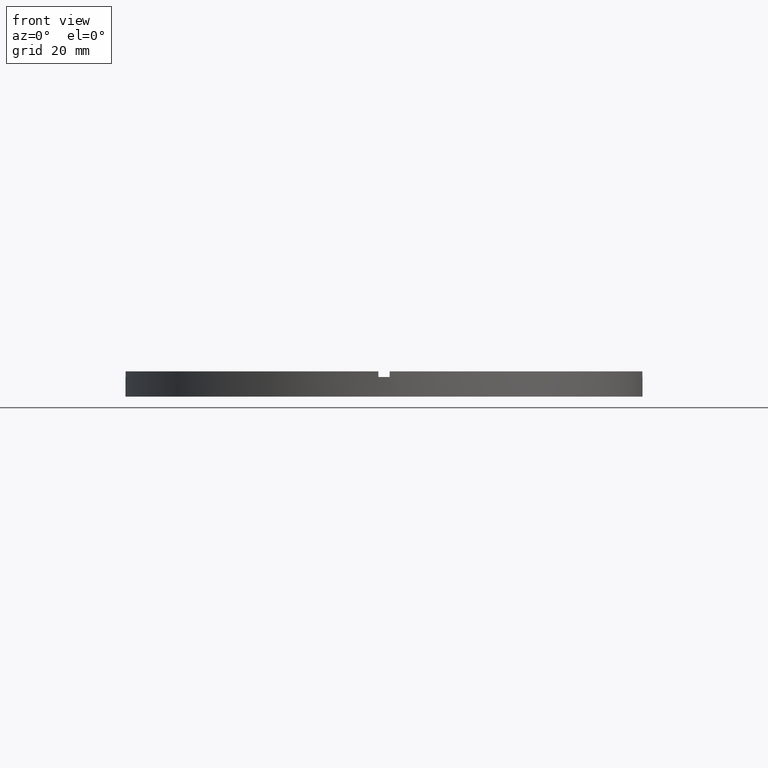
[diagram: clean part render]
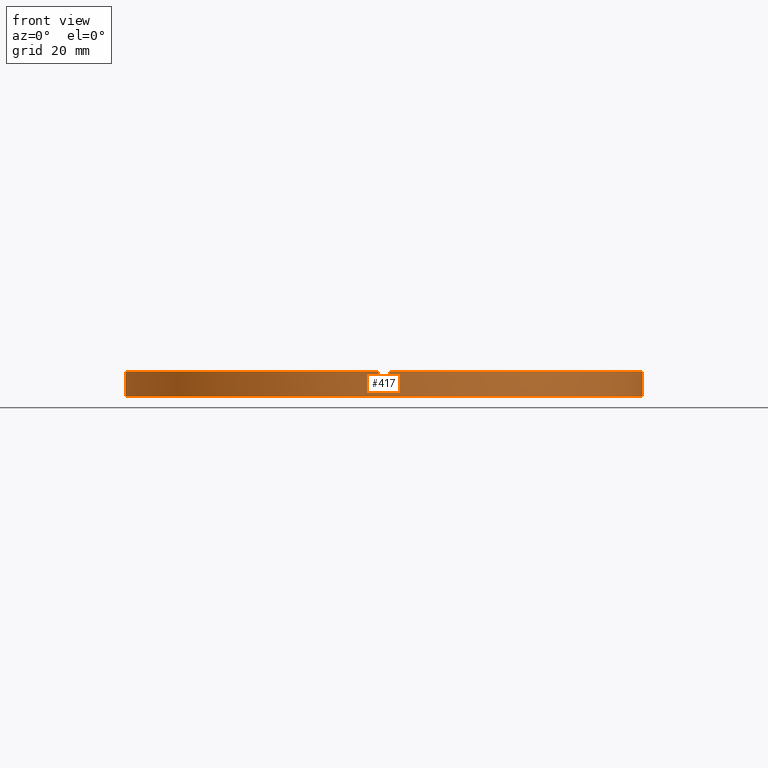
[diagram: same view with one face highlighted and labeled with its STEP entity id]
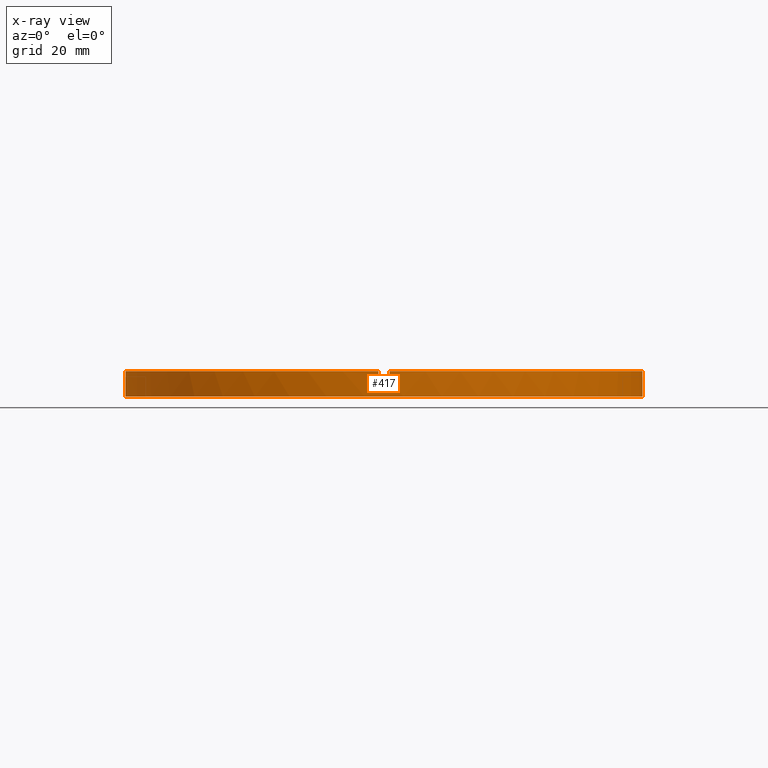
[diagram: x-ray of the same camera — body ghosted, the highlighted face saturated]
A machine part, front view. The second image highlights one B-rep face of the part: STEP entity #417.
The next image is the same camera in x-ray: the body ghosted, the highlighted face saturated — about 0% of this face is hidden behind the body in this view.
In plain terms, the highlighted cylindrical surface (partial cylindrical patch) has radius 46 mm, axis along (-0, -0, -1).
Its self-contained STEP definition (entity closure, byte-faithful):
#1 = CIRCLE ( 'NONE', #166, 46.00000000000000000 ) ;
#3 = LINE ( 'NONE', #771, #769 ) ;
#23 = VERTEX_POINT ( 'NONE', #419 ) ;
#26 = VERTEX_POINT ( 'NONE', #512 ) ;
#58 = DIRECTION ( 'NONE',  ( 1.000000000000000000, 0.000000000000000000, 0.000000000000000000 ) ) ;
#68 = EDGE_CURVE ( 'NONE', #690, #423, #693, .T. ) ;
#69 = CARTESIAN_POINT ( 'NONE',  ( 46.00000000000000000, 5.633375276077824704E-15, 0.000000000000000000 ) ) ;
#76 = DIRECTION ( 'NONE',  ( 1.000000000000000000, 0.000000000000000000, 0.000000000000000000 ) ) ;
#81 = CARTESIAN_POINT ( 'NONE',  ( 46.00000000000000000, 5.633375276077824704E-15, 3.499999999999999556 ) ) ;
#98 = CARTESIAN_POINT ( 'NONE',  ( -46.00000000000000000, 0.000000000000000000, 0.000000000000000000 ) ) ;
#100 = EDGE_CURVE ( 'NONE', #544, #279, #443, .T. ) ;
#103 = CARTESIAN_POINT ( 'NONE',  ( -1.000000000000157874, -45.98912915026767223, 4.500000000000000000 ) ) ;
#112 = DIRECTION ( 'NONE',  ( -0.000000000000000000, 0.000000000000000000, 1.000000000000000000 ) ) ;
#128 = DIRECTION ( 'NONE',  ( -0.000000000000000000, -0.000000000000000000, -1.000000000000000000 ) ) ;
#129 = CYLINDRICAL_SURFACE ( 'NONE', #694, 46.00000000000000000 ) ;
#133 = CARTESIAN_POINT ( 'NONE',  ( 0.9999999999998421263, -45.98912915026767934, 4.500000000000000000 ) ) ;
#134 = CARTESIAN_POINT ( 'NONE',  ( -1.000000000000157874, -45.98912915026767223, 4.500000000000000000 ) ) ;
#139 = DIRECTION ( 'NONE',  ( 0.000000000000000000, 0.000000000000000000, 1.000000000000000000 ) ) ;
#142 = CARTESIAN_POINT ( 'NONE',  ( -46.00000000000000000, 0.000000000000000000, 3.499999999999999556 ) ) ;
#143 = DIRECTION ( 'NONE',  ( 0.000000000000000000, 0.000000000000000000, 1.000000000000000000 ) ) ;
#146 = CARTESIAN_POINT ( 'NONE',  ( 0.000000000000000000, 0.000000000000000000, 4.500000000000000000 ) ) ;
#149 = EDGE_CURVE ( 'NONE', #444, #544, #237, .T. ) ;
#155 = CARTESIAN_POINT ( 'NONE',  ( -45.98912915026767223, -1.000000000000030198, 4.500000000000000000 ) ) ;
#163 = DIRECTION ( 'NONE',  ( 0.000000000000000000, 0.000000000000000000, 1.000000000000000000 ) ) ;
#166 = AXIS2_PLACEMENT_3D ( 'NONE', #312, #670, #533 ) ;
#167 = ORIENTED_EDGE ( 'NONE', *, *, #202, .T. ) ;
#172 = VERTEX_POINT ( 'NONE', #81 ) ;
#180 = DIRECTION ( 'NONE',  ( 0.000000000000000000, 0.000000000000000000, 1.000000000000000000 ) ) ;
#193 = VERTEX_POINT ( 'NONE', #133 ) ;
#202 = EDGE_CURVE ( 'NONE', #193, #455, #753, .T. ) ;
#207 = ORIENTED_EDGE ( 'NONE', *, *, #621, .T. ) ;
#209 = ORIENTED_EDGE ( 'NONE', *, *, #614, .F. ) ;
#234 = VECTOR ( 'NONE', #128, 1000.000000000000000 ) ;
#237 = LINE ( 'NONE', #654, #234 ) ;
#257 = DIRECTION ( 'NONE',  ( 1.000000000000000000, 0.000000000000000000, 0.000000000000000000 ) ) ;
#264 = CIRCLE ( 'NONE', #414, 46.00000000000000000 ) ;
#269 = ORIENTED_EDGE ( 'NONE', *, *, #358, .F. ) ;
#274 = CARTESIAN_POINT ( 'NONE',  ( 0.9999999999998421263, -45.98912915026767934, 4.500000000000000000 ) ) ;
#279 = VERTEX_POINT ( 'NONE', #69 ) ;
#288 = CARTESIAN_POINT ( 'NONE',  ( 45.98912915026767223, -1.000000000000155875, 4.500000000000000000 ) ) ;
#291 = CARTESIAN_POINT ( 'NONE',  ( 0.9999999999998421263, -45.98912915026767934, 3.499999999999999556 ) ) ;
#312 = CARTESIAN_POINT ( 'NONE',  ( 0.000000000000000000, 0.000000000000000000, 4.500000000000000000 ) ) ;
#316 = CARTESIAN_POINT ( 'NONE',  ( 45.98912915026767223, -1.000000000000155875, 4.500000000000000000 ) ) ;
#322 = EDGE_CURVE ( 'NONE', #444, #23, #629, .T. ) ;
#340 = CARTESIAN_POINT ( 'NONE',  ( -1.000000000000157874, -45.98912915026767223, 3.499999999999999556 ) ) ;
#345 = DIRECTION ( 'NONE',  ( -0.000000000000000000, -0.000000000000000000, -1.000000000000000000 ) ) ;
#353 = AXIS2_PLACEMENT_3D ( 'NONE', #368, #180, #420 ) ;
#358 = EDGE_CURVE ( 'NONE', #193, #471, #636, .T. ) ;
#368 = CARTESIAN_POINT ( 'NONE',  ( 0.000000000000000000, 0.000000000000000000, 4.500000000000000000 ) ) ;
#383 = DIRECTION ( 'NONE',  ( -0.000000000000000000, -0.000000000000000000, -1.000000000000000000 ) ) ;
#406 = DIRECTION ( 'NONE',  ( -0.000000000000000000, -0.000000000000000000, -1.000000000000000000 ) ) ;
#413 = DIRECTION ( 'NONE',  ( 0.000000000000000000, 0.000000000000000000, 1.000000000000000000 ) ) ;
#414 = AXIS2_PLACEMENT_3D ( 'NONE', #602, #112, #257 ) ;
#417 = ADVANCED_FACE ( 'NONE', ( #648 ), #129, .T. ) ;
#419 = CARTESIAN_POINT ( 'NONE',  ( -45.98912915026767223, -1.000000000000030198, 3.499999999999999556 ) ) ;
#420 = DIRECTION ( 'NONE',  ( 1.000000000000000000, 0.000000000000000000, 0.000000000000000000 ) ) ;
#423 = VERTEX_POINT ( 'NONE', #103 ) ;
#443 = CIRCLE ( 'NONE', #644, 46.00000000000000000 ) ;
#444 = VERTEX_POINT ( 'NONE', #142 ) ;
#448 = CARTESIAN_POINT ( 'NONE',  ( 0.000000000000000000, 0.000000000000000000, 3.499999999999999556 ) ) ;
#455 = VERTEX_POINT ( 'NONE', #291 ) ;
#456 = ORIENTED_EDGE ( 'NONE', *, *, #100, .T. ) ;
#457 = VERTEX_POINT ( 'NONE', #548 ) ;
#462 = AXIS2_PLACEMENT_3D ( 'NONE', #448, #143, #58 ) ;
#471 = VERTEX_POINT ( 'NONE', #288 ) ;
#494 = CARTESIAN_POINT ( 'NONE',  ( 0.000000000000000000, 0.000000000000000000, 3.499999999999999556 ) ) ;
#504 = LINE ( 'NONE', #155, #761 ) ;
#512 = CARTESIAN_POINT ( 'NONE',  ( -45.98912915026767223, -1.000000000000030198, 4.500000000000000000 ) ) ;
#517 = CIRCLE ( 'NONE', #462, 46.00000000000000000 ) ;
#523 = LINE ( 'NONE', #316, #765 ) ;
#533 = DIRECTION ( 'NONE',  ( 1.000000000000000000, 0.000000000000000000, 0.000000000000000000 ) ) ;
#544 = VERTEX_POINT ( 'NONE', #98 ) ;
#548 = CARTESIAN_POINT ( 'NONE',  ( 45.98912915026767223, -1.000000000000155875, 3.499999999999999556 ) ) ;
#551 = ORIENTED_EDGE ( 'NONE', *, *, #749, .F. ) ;
#589 = DIRECTION ( 'NONE',  ( -1.000000000000000000, 0.000000000000000000, 0.000000000000000000 ) ) ;
#595 = EDGE_CURVE ( 'NONE', #172, #279, #3, .T. ) ;
#602 = CARTESIAN_POINT ( 'NONE',  ( 0.000000000000000000, 0.000000000000000000, 3.499999999999999556 ) ) ;
#611 = VECTOR ( 'NONE', #383, 1000.000000000000000 ) ;
#614 = EDGE_CURVE ( 'NONE', #690, #455, #264, .T. ) ;
#621 = EDGE_CURVE ( 'NONE', #26, #23, #504, .T. ) ;
#629 = CIRCLE ( 'NONE', #630, 46.00000000000000000 ) ;
#630 = AXIS2_PLACEMENT_3D ( 'NONE', #494, #656, #76 ) ;
#636 = CIRCLE ( 'NONE', #353, 46.00000000000000000 ) ;
#644 = AXIS2_PLACEMENT_3D ( 'NONE', #716, #413, #738 ) ;
#648 = FACE_OUTER_BOUND ( 'NONE', #735, .T. ) ;
#654 = CARTESIAN_POINT ( 'NONE',  ( -46.00000000000000000, 0.000000000000000000, 4.500000000000000000 ) ) ;
#656 = DIRECTION ( 'NONE',  ( 0.000000000000000000, 0.000000000000000000, 1.000000000000000000 ) ) ;
#659 = EDGE_CURVE ( 'NONE', #457, #471, #523, .T. ) ;
#664 = EDGE_CURVE ( 'NONE', #26, #423, #1, .T. ) ;
#670 = DIRECTION ( 'NONE',  ( 0.000000000000000000, 0.000000000000000000, 1.000000000000000000 ) ) ;
#684 = ORIENTED_EDGE ( 'NONE', *, *, #659, .T. ) ;
#690 = VERTEX_POINT ( 'NONE', #340 ) ;
#693 = LINE ( 'NONE', #134, #703 ) ;
#694 = AXIS2_PLACEMENT_3D ( 'NONE', #146, #770, #589 ) ;
#703 = VECTOR ( 'NONE', #139, 1000.000000000000000 ) ;
#706 = ORIENTED_EDGE ( 'NONE', *, *, #68, .T. ) ;
#715 = ORIENTED_EDGE ( 'NONE', *, *, #664, .F. ) ;
#716 = CARTESIAN_POINT ( 'NONE',  ( 0.000000000000000000, 0.000000000000000000, 0.000000000000000000 ) ) ;
#719 = ORIENTED_EDGE ( 'NONE', *, *, #595, .F. ) ;
#724 = ORIENTED_EDGE ( 'NONE', *, *, #322, .F. ) ;
#735 = EDGE_LOOP ( 'NONE', ( #719, #551, #684, #269, #167, #209, #706, #715, #207, #724, #772, #456 ) ) ;
#738 = DIRECTION ( 'NONE',  ( 1.000000000000000000, 0.000000000000000000, 0.000000000000000000 ) ) ;
#749 = EDGE_CURVE ( 'NONE', #457, #172, #517, .T. ) ;
#753 = LINE ( 'NONE', #274, #611 ) ;
#761 = VECTOR ( 'NONE', #406, 1000.000000000000000 ) ;
#765 = VECTOR ( 'NONE', #163, 1000.000000000000000 ) ;
#769 = VECTOR ( 'NONE', #345, 1000.000000000000000 ) ;
#770 = DIRECTION ( 'NONE',  ( -0.000000000000000000, -0.000000000000000000, -1.000000000000000000 ) ) ;
#771 = CARTESIAN_POINT ( 'NONE',  ( 46.00000000000000000, 5.633375276077824704E-15, 4.500000000000000000 ) ) ;
#772 = ORIENTED_EDGE ( 'NONE', *, *, #149, .T. ) ;